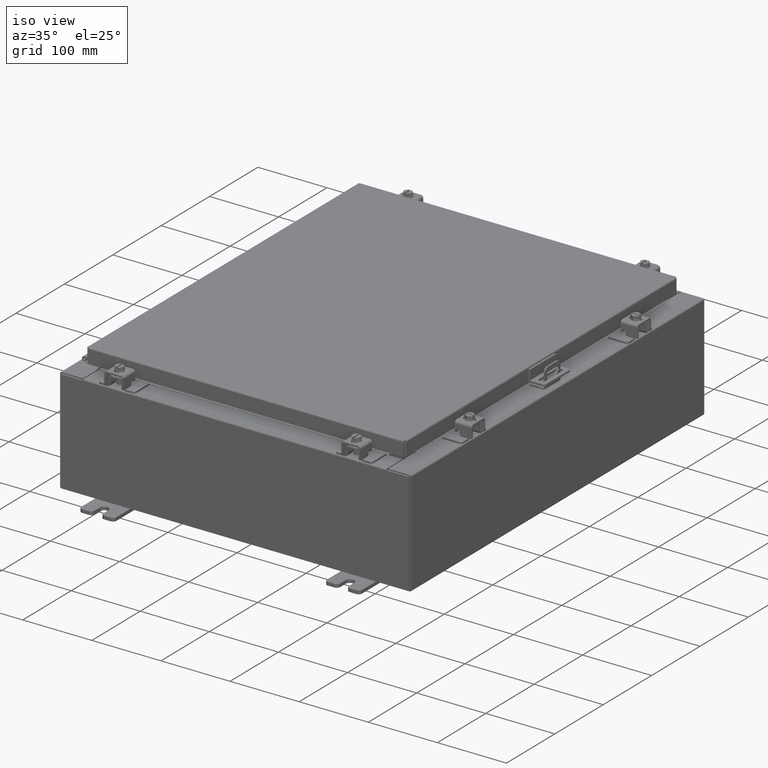
[diagram: clean part render]
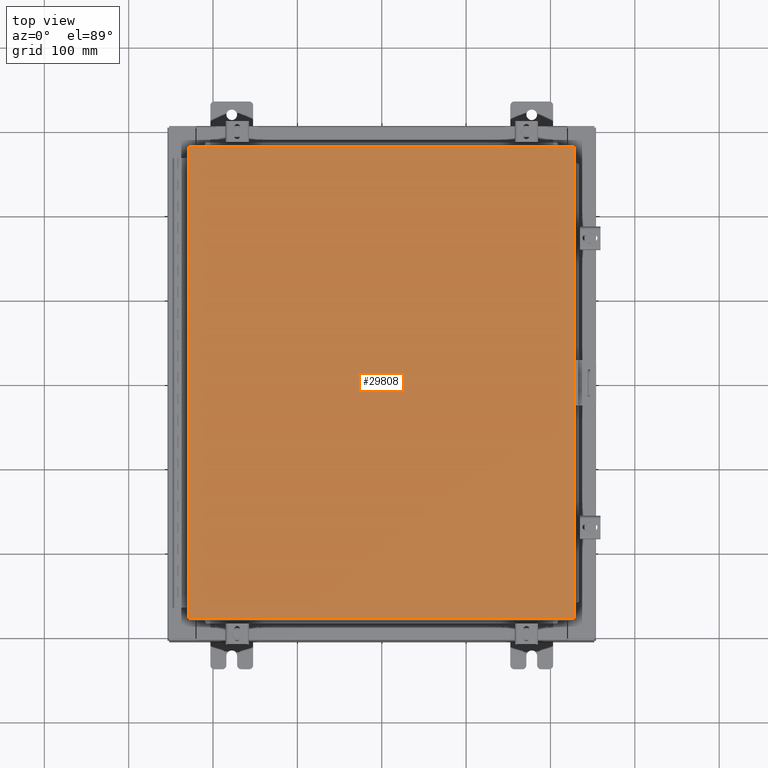
[diagram: tour spotlight — one face highlighted and labeled with its STEP entity id]
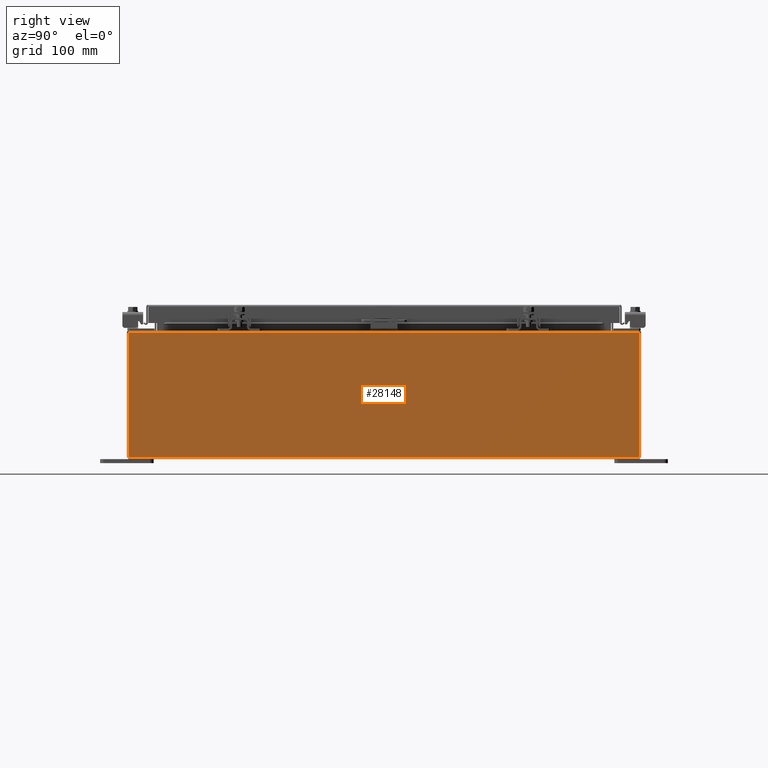
[diagram: tour spotlight — one face highlighted and labeled with its STEP entity id]
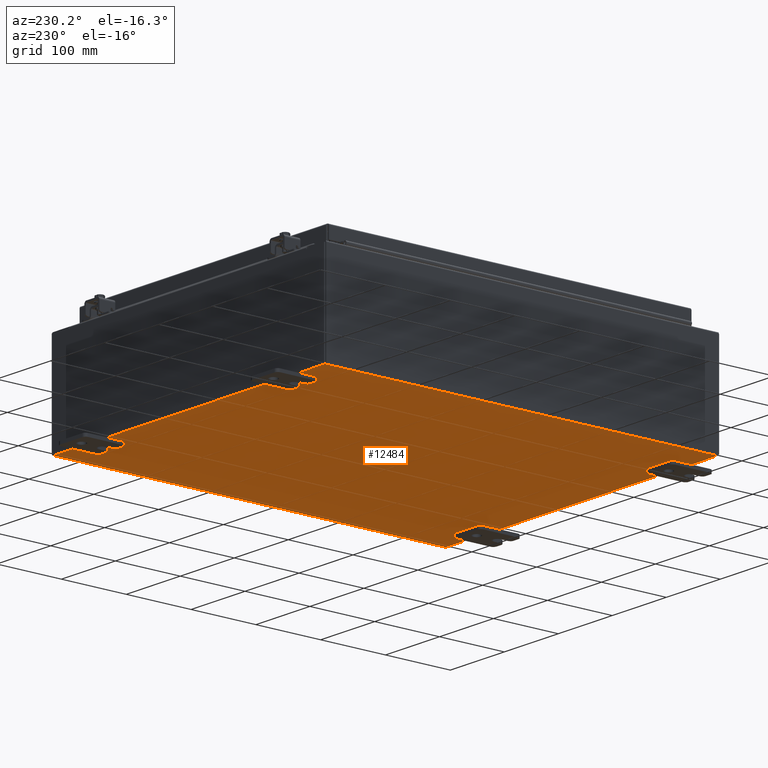
[diagram: tour spotlight — one face highlighted and labeled with its STEP entity id]
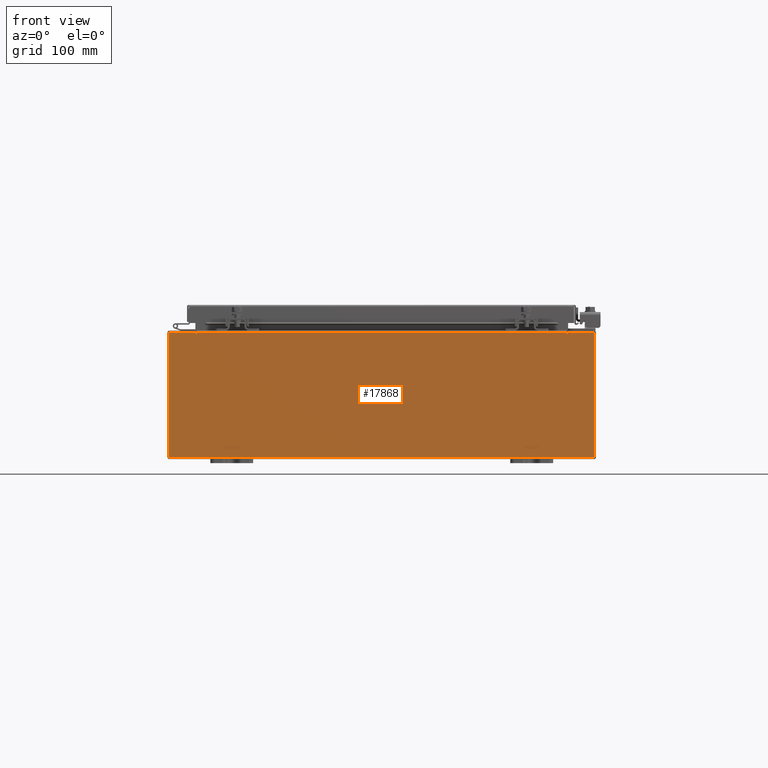
[diagram: tour spotlight — one face highlighted and labeled with its STEP entity id]
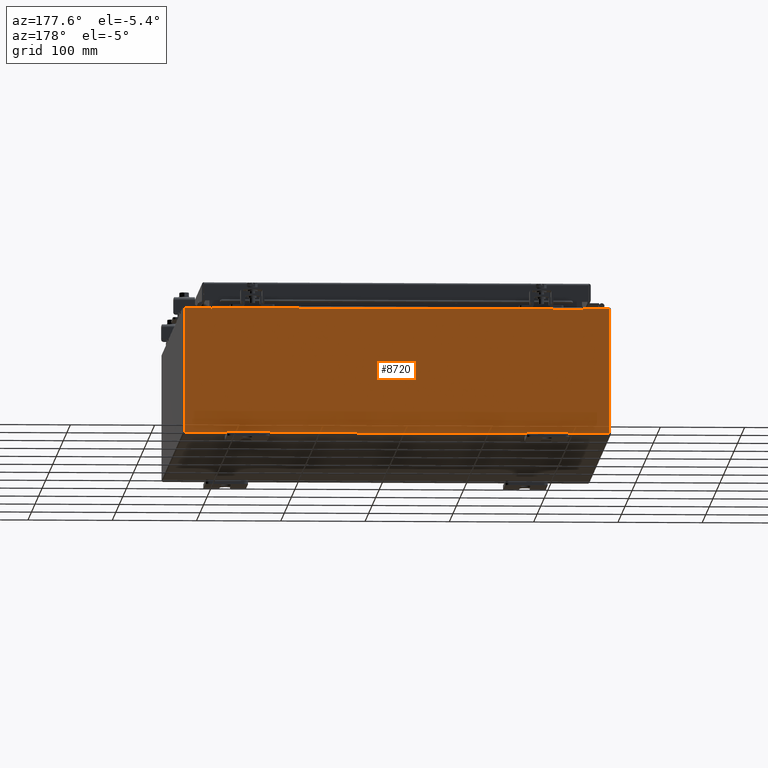
[diagram: tour spotlight — one face highlighted and labeled with its STEP entity id]
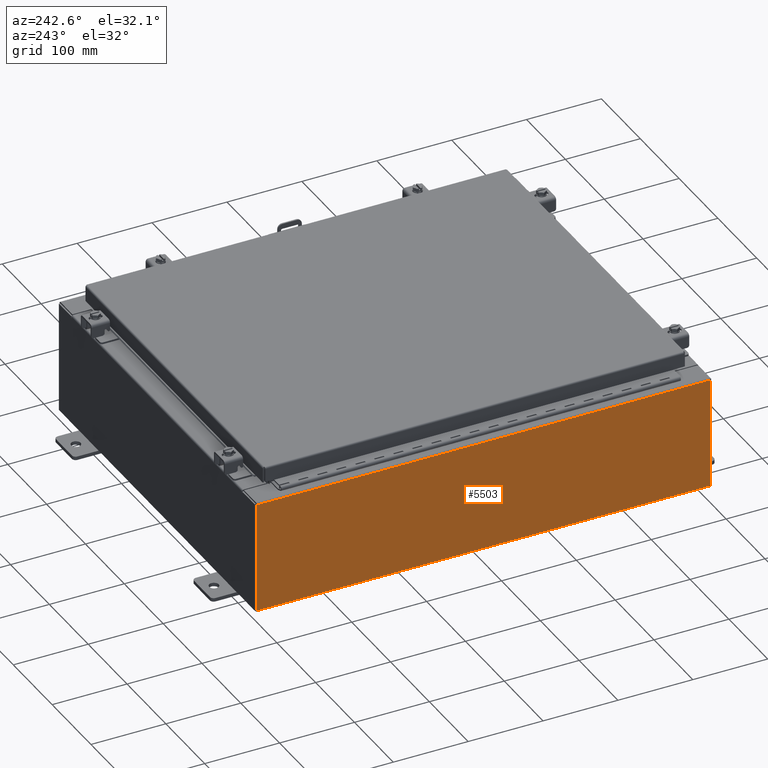
[diagram: tour spotlight — one face highlighted and labeled with its STEP entity id]
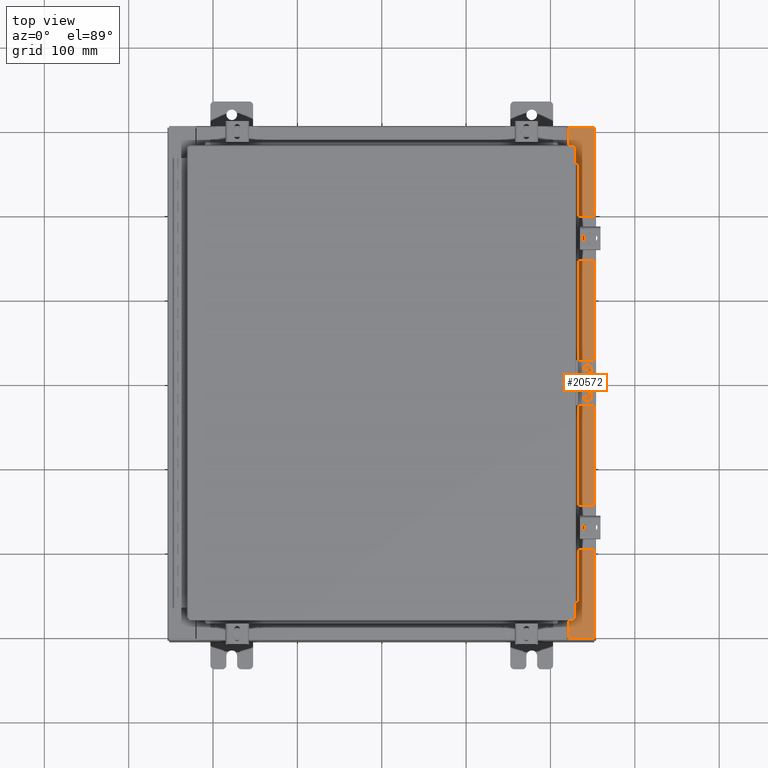
[diagram: tour spotlight — one face highlighted and labeled with its STEP entity id]
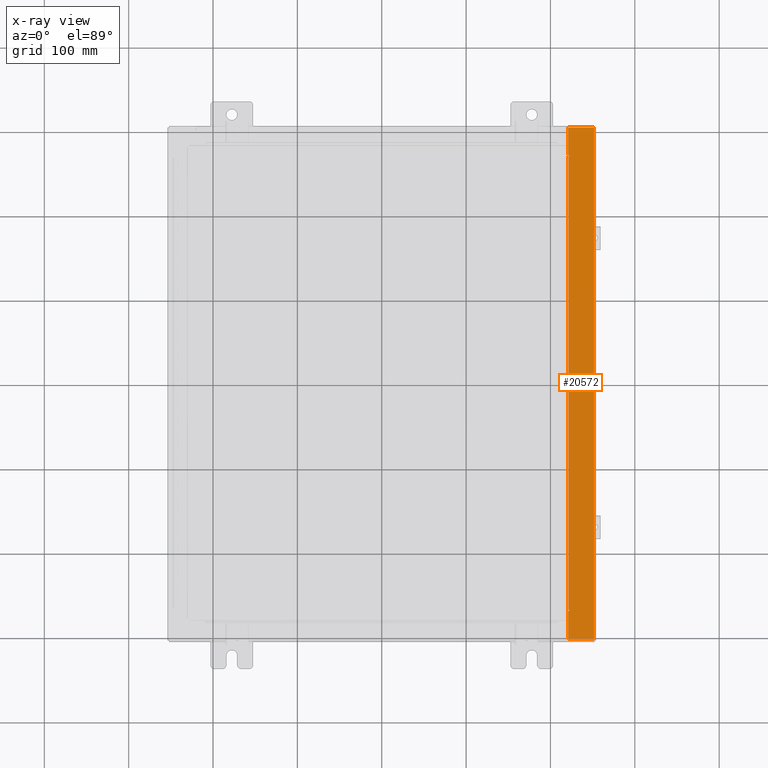
[diagram: x-ray of the same camera — body ghosted, this tour face saturated]
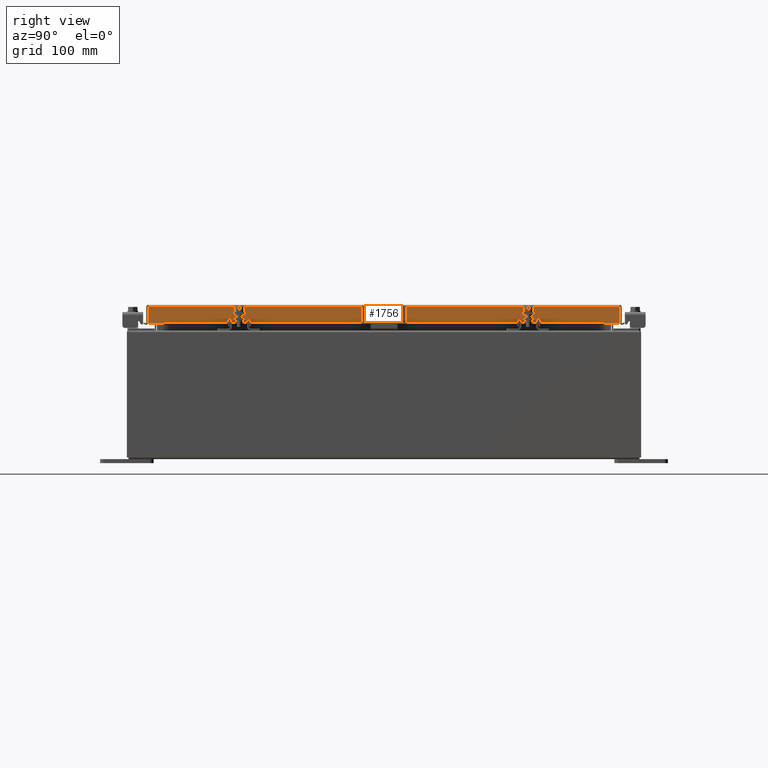
[diagram: tour spotlight — one face highlighted and labeled with its STEP entity id]
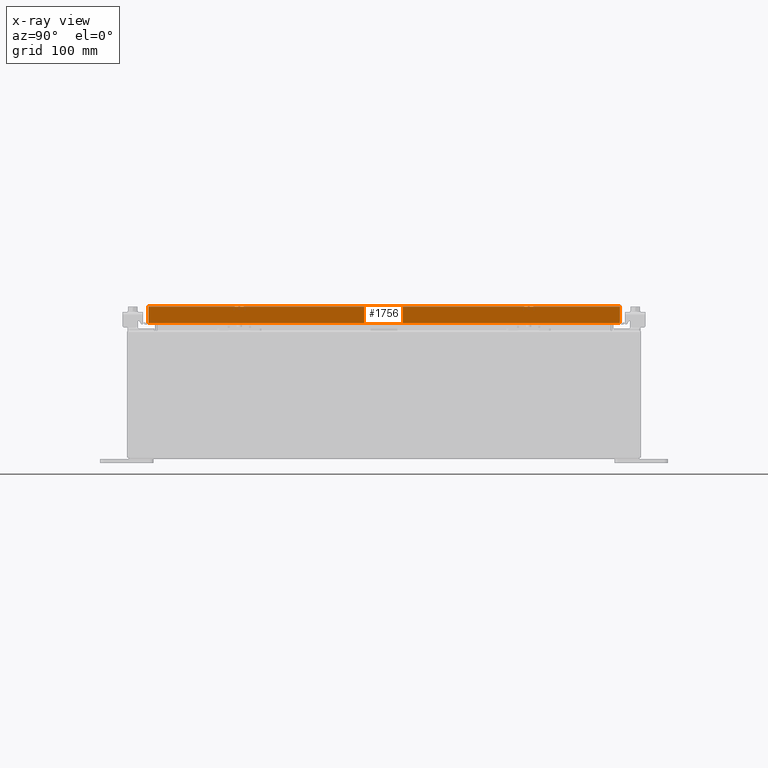
[diagram: x-ray of the same camera — body ghosted, this tour face saturated]
A machine part: a face-by-face anatomy tour. The part has 1709 B-rep faces; the first image is the clean iso view, then the 8 largest visible faces are spotlighted one at a time (largest first), each with its STEP entity span.

Face 1 — top view, entity #29808. In plain terms, the highlighted planar face has unit normal (0, 0, -1).
Definition (entity closure, byte-faithful):
#340 = CARTESIAN_POINT ( 'NONE',  ( 8.990299999999999500, 11.00630000000000000, -2.048885995248197400E-016 ) ) ;
#722 = CARTESIAN_POINT ( 'NONE',  ( 0.0000000000000000000, 0.0000000000000000000, 0.0000000000000000000 ) ) ;
#993 = EDGE_LOOP ( 'NONE', ( #31752, #9588, #30353, #30080 ) ) ;
#1302 = EDGE_CURVE ( 'NONE', #22427, #31088, #4163, .T. ) ;
#2485 = DIRECTION ( 'NONE',  ( 0.0000000000000000000, -1.000000000000000000, 0.0000000000000000000 ) ) ;
#3064 = CARTESIAN_POINT ( 'NONE',  ( 8.990299999999997700, -11.00630000000000000, -2.048885995248197400E-016 ) ) ;
#4163 = LINE ( 'NONE', #3064, #10060 ) ;
#6001 = LINE ( 'NONE', #340, #31782 ) ;
#6745 = VERTEX_POINT ( 'NONE', #26217 ) ;
#8630 = CARTESIAN_POINT ( 'NONE',  ( -8.990299999999999500, 11.00630000000000100, -2.048885995248197400E-016 ) ) ;
#9588 = ORIENTED_EDGE ( 'NONE', *, *, #1302, .T. ) ;
#10060 = VECTOR ( 'NONE', #11282, 39.37007874015748100 ) ;
#10882 = DIRECTION ( 'NONE',  ( 0.0000000000000000000, 0.0000000000000000000, -1.000000000000000000 ) ) ;
#11282 = DIRECTION ( 'NONE',  ( 0.0000000000000000000, 1.000000000000000000, 0.0000000000000000000 ) ) ;
#15616 = LINE ( 'NONE', #19941, #28908 ) ;
#16939 = EDGE_CURVE ( 'NONE', #24371, #6745, #15616, .T. ) ;
#17858 = DIRECTION ( 'NONE',  ( -1.000000000000000000, -0.0000000000000000000, -0.0000000000000000000 ) ) ;
#19941 = CARTESIAN_POINT ( 'NONE',  ( -8.990299999999999500, 11.00630000000000100, -2.048885995248197400E-016 ) ) ;
#21967 = AXIS2_PLACEMENT_3D ( 'NONE', #722, #10882, #28279 ) ;
#22427 = VERTEX_POINT ( 'NONE', #25956 ) ;
#24371 = VERTEX_POINT ( 'NONE', #8630 ) ;
#24434 = VECTOR ( 'NONE', #30696, 39.37007874015748100 ) ;
#25727 = CARTESIAN_POINT ( 'NONE',  ( -8.990300000000001300, -11.00630000000000100, 8.878505979408856000E-016 ) ) ;
#25772 = PLANE ( 'NONE',  #21967 ) ;
#25797 = CARTESIAN_POINT ( 'NONE',  ( 8.990299999999999500, 11.00630000000000000, -2.048885995248197400E-016 ) ) ;
#25956 = CARTESIAN_POINT ( 'NONE',  ( 8.990299999999997700, -11.00630000000000000, -2.048885995248197400E-016 ) ) ;
#26217 = CARTESIAN_POINT ( 'NONE',  ( -8.990300000000001300, -11.00630000000000100, 8.878505979408856000E-016 ) ) ;
#28279 = DIRECTION ( 'NONE',  ( -1.000000000000000000, 0.0000000000000000000, -0.0000000000000000000 ) ) ;
#28445 = EDGE_CURVE ( 'NONE', #31088, #24371, #6001, .T. ) ;
#28453 = FACE_OUTER_BOUND ( 'NONE', #993, .T. ) ;
#28908 = VECTOR ( 'NONE', #2485, 39.37007874015748100 ) ;
#29808 = ADVANCED_FACE ( 'NONE', ( #28453 ), #25772, .F. ) ;
#30080 = ORIENTED_EDGE ( 'NONE', *, *, #16939, .T. ) ;
#30353 = ORIENTED_EDGE ( 'NONE', *, *, #28445, .T. ) ;
#30696 = DIRECTION ( 'NONE',  ( 1.000000000000000000, -0.0000000000000000000, -0.0000000000000000000 ) ) ;
#31088 = VERTEX_POINT ( 'NONE', #25797 ) ;
#31752 = ORIENTED_EDGE ( 'NONE', *, *, #32159, .T. ) ;
#31782 = VECTOR ( 'NONE', #17858, 39.37007874015748100 ) ;
#31931 = LINE ( 'NONE', #25727, #24434 ) ;
#32159 = EDGE_CURVE ( 'NONE', #6745, #22427, #31931, .T. ) ;

Face 2 — right view, entity #28148. In plain terms, the highlighted planar face has unit normal (-1, 0, 0).
Definition (entity closure, byte-faithful):
#41 = LINE ( 'NONE', #4591, #31810 ) ;
#164 = EDGE_CURVE ( 'NONE', #10773, #7703, #41, .T. ) ;
#369 = EDGE_CURVE ( 'NONE', #7703, #13122, #6407, .T. ) ;
#967 = EDGE_LOOP ( 'NONE', ( #11157, #20116, #32401, #12408 ) ) ;
#3499 = CARTESIAN_POINT ( 'NONE',  ( 10.00000000000002000, 11.92529999999999800, 5.837600000000001000 ) ) ;
#4591 = CARTESIAN_POINT ( 'NONE',  ( 10.00000000000002000, 11.92530000000000000, 5.837600000000001000 ) ) ;
#4859 = EDGE_CURVE ( 'NONE', #19085, #10773, #12225, .T. ) ;
#5146 = AXIS2_PLACEMENT_3D ( 'NONE', #22424, #12682, #30149 ) ;
#5425 = VECTOR ( 'NONE', #25697, 39.37007874015748100 ) ;
#5572 = VECTOR ( 'NONE', #10959, 39.37007874015748100 ) ;
#6407 = LINE ( 'NONE', #19806, #18826 ) ;
#7703 = VERTEX_POINT ( 'NONE', #23976 ) ;
#9304 = CARTESIAN_POINT ( 'NONE',  ( 10.00000000000000000, 11.92529999999999800, 0.01299999999999986400 ) ) ;
#10172 = PLANE ( 'NONE',  #5146 ) ;
#10552 = CARTESIAN_POINT ( 'NONE',  ( 10.00000000000000000, -11.92530000000000000, 0.01299999999999985900 ) ) ;
#10773 = VERTEX_POINT ( 'NONE', #3499 ) ;
#10959 = DIRECTION ( 'NONE',  ( 3.319545939341922800E-015, 0.0000000000000000000, 1.000000000000000000 ) ) ;
#11157 = ORIENTED_EDGE ( 'NONE', *, *, #164, .T. ) ;
#12225 = LINE ( 'NONE', #20799, #5572 ) ;
#12408 = ORIENTED_EDGE ( 'NONE', *, *, #4859, .T. ) ;
#12682 = DIRECTION ( 'NONE',  ( -1.000000000000000000, 0.0000000000000000000, 3.319545939341922000E-015 ) ) ;
#13122 = VERTEX_POINT ( 'NONE', #10552 ) ;
#13632 = DIRECTION ( 'NONE',  ( -3.319545939341922800E-015, 0.0000000000000000000, -1.000000000000000000 ) ) ;
#18826 = VECTOR ( 'NONE', #13632, 39.37007874015748100 ) ;
#19085 = VERTEX_POINT ( 'NONE', #9304 ) ;
#19806 = CARTESIAN_POINT ( 'NONE',  ( 10.00000000000000000, -11.92530000000000000, -3.345627304943080600E-014 ) ) ;
#20116 = ORIENTED_EDGE ( 'NONE', *, *, #369, .T. ) ;
#20799 = CARTESIAN_POINT ( 'NONE',  ( 10.00000000000000000, 11.92530000000000000, -3.345627304943080600E-014 ) ) ;
#21165 = FACE_OUTER_BOUND ( 'NONE', #967, .T. ) ;
#21550 = DIRECTION ( 'NONE',  ( -0.0000000000000000000, -1.000000000000000000, -0.0000000000000000000 ) ) ;
#22424 = CARTESIAN_POINT ( 'NONE',  ( 10.00000000000000000, 0.0000000000000000000, -3.345627304943080600E-014 ) ) ;
#23157 = CARTESIAN_POINT ( 'NONE',  ( 10.00000000000000000, -11.92530000000000000, 0.01299999999999986400 ) ) ;
#23976 = CARTESIAN_POINT ( 'NONE',  ( 10.00000000000002000, -11.92530000000000000, 5.837600000000001000 ) ) ;
#25304 = LINE ( 'NONE', #23157, #5425 ) ;
#25697 = DIRECTION ( 'NONE',  ( -0.0000000000000000000, -1.000000000000000000, -0.0000000000000000000 ) ) ;
#28148 = ADVANCED_FACE ( 'NONE', ( #21165 ), #10172, .F. ) ;
#30149 = DIRECTION ( 'NONE',  ( 3.319545939341922000E-015, 0.0000000000000000000, 1.000000000000000000 ) ) ;
#31056 = EDGE_CURVE ( 'NONE', #19085, #13122, #25304, .T. ) ;
#31810 = VECTOR ( 'NONE', #21550, 39.37007874015748100 ) ;
#32401 = ORIENTED_EDGE ( 'NONE', *, *, #31056, .F. ) ;

Face 3 — auxiliary view, entity #12484. In plain terms, the highlighted planar face has unit normal (0, 0, -1).
Definition (entity closure, byte-faithful):
#246 = CARTESIAN_POINT ( 'NONE',  ( -10.00000000000000000, -11.92530000000000000, -0.07470000000000000300 ) ) ;
#2719 = DIRECTION ( 'NONE',  ( 1.000000000000000000, 0.0000000000000000000, 0.0000000000000000000 ) ) ;
#3911 = CARTESIAN_POINT ( 'NONE',  ( -9.912300000000000100, -11.92529999999999800, -0.07469999999999994700 ) ) ;
#4334 = LINE ( 'NONE', #19508, #30138 ) ;
#6215 = CARTESIAN_POINT ( 'NONE',  ( -9.912300000000000100, -11.92530000000000000, -0.07469999999999994700 ) ) ;
#7597 = CARTESIAN_POINT ( 'NONE',  ( 9.912300000000000100, 11.92530000000000000, -0.07469999999999994700 ) ) ;
#10557 = EDGE_CURVE ( 'NONE', #24012, #12305, #25810, .T. ) ;
#11024 = EDGE_CURVE ( 'NONE', #24012, #25188, #4334, .T. ) ;
#11702 = VECTOR ( 'NONE', #16200, 39.37007874015748100 ) ;
#12157 = DIRECTION ( 'NONE',  ( -1.000000000000000000, -0.0000000000000000000, -0.0000000000000000000 ) ) ;
#12305 = VERTEX_POINT ( 'NONE', #20115 ) ;
#12360 = CARTESIAN_POINT ( 'NONE',  ( 9.912300000000000100, 11.92529999999999800, -0.07469999999999994700 ) ) ;
#12484 = ADVANCED_FACE ( 'NONE', ( #28049 ), #15760, .T. ) ;
#12567 = EDGE_CURVE ( 'NONE', #13944, #25188, #19817, .T. ) ;
#13279 = ORIENTED_EDGE ( 'NONE', *, *, #11024, .F. ) ;
#13300 = CARTESIAN_POINT ( 'NONE',  ( 0.0000000000000000000, 0.0000000000000000000, -0.07470000000000000300 ) ) ;
#13652 = EDGE_CURVE ( 'NONE', #13944, #12305, #15104, .T. ) ;
#13944 = VERTEX_POINT ( 'NONE', #3911 ) ;
#15104 = LINE ( 'NONE', #246, #21697 ) ;
#15760 = PLANE ( 'NONE',  #25551 ) ;
#15878 = DIRECTION ( 'NONE',  ( -1.000000000000000000, 0.0000000000000000000, -0.0000000000000000000 ) ) ;
#16200 = DIRECTION ( 'NONE',  ( -0.0000000000000000000, 1.000000000000000000, -0.0000000000000000000 ) ) ;
#18359 = VECTOR ( 'NONE', #24993, 39.37007874015748100 ) ;
#19508 = CARTESIAN_POINT ( 'NONE',  ( -10.00000000000000000, 11.92530000000000000, -0.07470000000000000300 ) ) ;
#19817 = LINE ( 'NONE', #6215, #11702 ) ;
#20115 = CARTESIAN_POINT ( 'NONE',  ( 9.912300000000000100, -11.92530000000000000, -0.07470000000000000300 ) ) ;
#20327 = ORIENTED_EDGE ( 'NONE', *, *, #10557, .T. ) ;
#20959 = ORIENTED_EDGE ( 'NONE', *, *, #12567, .T. ) ;
#21697 = VECTOR ( 'NONE', #2719, 39.37007874015748100 ) ;
#24012 = VERTEX_POINT ( 'NONE', #12360 ) ;
#24118 = CARTESIAN_POINT ( 'NONE',  ( -9.912300000000000100, 11.92530000000000000, -0.07470000000000000300 ) ) ;
#24993 = DIRECTION ( 'NONE',  ( -0.0000000000000000000, -1.000000000000000000, -0.0000000000000000000 ) ) ;
#25188 = VERTEX_POINT ( 'NONE', #24118 ) ;
#25551 = AXIS2_PLACEMENT_3D ( 'NONE', #13300, #30869, #15878 ) ;
#25810 = LINE ( 'NONE', #7597, #18359 ) ;
#27933 = EDGE_LOOP ( 'NONE', ( #30140, #20959, #13279, #20327 ) ) ;
#28049 = FACE_OUTER_BOUND ( 'NONE', #27933, .T. ) ;
#30138 = VECTOR ( 'NONE', #12157, 39.37007874015748100 ) ;
#30140 = ORIENTED_EDGE ( 'NONE', *, *, #13652, .F. ) ;
#30869 = DIRECTION ( 'NONE',  ( 0.0000000000000000000, 0.0000000000000000000, -1.000000000000000000 ) ) ;

Face 4 — front view, entity #17868. In plain terms, the highlighted planar face has unit normal (-0, 1, -0).
Definition (entity closure, byte-faithful):
#53 = CARTESIAN_POINT ( 'NONE',  ( 9.925300000000000000, 0.0000000000000000000, 2.925300000000000500 ) ) ;
#137 = DIRECTION ( 'NONE',  ( 1.000000000000000000, 0.0000000000000000000, 0.0000000000000000000 ) ) ;
#511 = VECTOR ( 'NONE', #26321, 39.37007874015748100 ) ;
#708 = VECTOR ( 'NONE', #15236, 39.37007874015748100 ) ;
#1703 = VERTEX_POINT ( 'NONE', #7808 ) ;
#1921 = DIRECTION ( 'NONE',  ( -0.0000000000000000000, 1.000000000000000000, -0.0000000000000000000 ) ) ;
#1993 = ORIENTED_EDGE ( 'NONE', *, *, #28302, .F. ) ;
#2179 = VECTOR ( 'NONE', #137, 39.37007874015748100 ) ;
#2208 = VECTOR ( 'NONE', #28074, 39.37007874015748100 ) ;
#2262 = DIRECTION ( 'NONE',  ( -0.0000000000000000000, 1.000000000000000000, -0.0000000000000000000 ) ) ;
#2627 = CARTESIAN_POINT ( 'NONE',  ( -9.925300000000000000, 0.0000000000000000000, -2.925299999999999600 ) ) ;
#3241 = CIRCLE ( 'NONE', #26881, 0.01867500000000003900 ) ;
#3471 = LINE ( 'NONE', #13170, #21779 ) ;
#3705 = VERTEX_POINT ( 'NONE', #16646 ) ;
#4499 = ORIENTED_EDGE ( 'NONE', *, *, #24944, .F. ) ;
#4774 = CARTESIAN_POINT ( 'NONE',  ( -8.674549999999996400, 0.0000000000000000000, 2.925300000000000500 ) ) ;
#5336 = ORIENTED_EDGE ( 'NONE', *, *, #25396, .T. ) ;
#5368 = EDGE_CURVE ( 'NONE', #25713, #9865, #7134, .T. ) ;
#5595 = ORIENTED_EDGE ( 'NONE', *, *, #23881, .F. ) ;
#5917 = CARTESIAN_POINT ( 'NONE',  ( 9.925300000000000000, 0.0000000000000000000, -2.925299999999999600 ) ) ;
#6320 = DIRECTION ( 'NONE',  ( 0.0000000000000000000, -1.000000000000000000, 0.0000000000000000000 ) ) ;
#6601 = VERTEX_POINT ( 'NONE', #30768 ) ;
#6981 = CARTESIAN_POINT ( 'NONE',  ( -9.925300000000000000, 0.0000000000000000000, 2.925300000000000500 ) ) ;
#7134 = LINE ( 'NONE', #6981, #26986 ) ;
#7267 = ORIENTED_EDGE ( 'NONE', *, *, #27220, .F. ) ;
#7320 = VERTEX_POINT ( 'NONE', #2627 ) ;
#7613 = DIRECTION ( 'NONE',  ( 0.0000000000000000000, 0.0000000000000000000, -1.000000000000000000 ) ) ;
#7808 = CARTESIAN_POINT ( 'NONE',  ( 8.637200000000000000, 0.0000000000000000000, 2.912300000000000600 ) ) ;
#8271 = DIRECTION ( 'NONE',  ( 0.0000000000000000000, 0.0000000000000000000, 1.000000000000000000 ) ) ;
#8623 = DIRECTION ( 'NONE',  ( -0.0000000000000000000, -0.0000000000000000000, 1.000000000000000000 ) ) ;
#8814 = ORIENTED_EDGE ( 'NONE', *, *, #29776, .F. ) ;
#9476 = DIRECTION ( 'NONE',  ( 1.000000000000000000, 0.0000000000000000000, 0.0000000000000000000 ) ) ;
#9543 = ORIENTED_EDGE ( 'NONE', *, *, #22156, .F. ) ;
#9763 = CIRCLE ( 'NONE', #29095, 0.01867500000000003900 ) ;
#9865 = VERTEX_POINT ( 'NONE', #4774 ) ;
#10308 = VECTOR ( 'NONE', #8623, 39.37007874015748100 ) ;
#12601 = LINE ( 'NONE', #32456, #16854 ) ;
#12618 = VERTEX_POINT ( 'NONE', #16414 ) ;
#12713 = CARTESIAN_POINT ( 'NONE',  ( -9.925300000000000000, 0.0000000000000000000, 2.925300000000000500 ) ) ;
#12911 = ORIENTED_EDGE ( 'NONE', *, *, #21136, .T. ) ;
#13008 = EDGE_CURVE ( 'NONE', #31629, #30481, #24874, .T. ) ;
#13170 = CARTESIAN_POINT ( 'NONE',  ( -8.674549999999996400, -0.0000000000000000000, 0.0000000000000000000 ) ) ;
#13672 = DIRECTION ( 'NONE',  ( 1.000000000000000000, 0.0000000000000000000, 0.0000000000000000000 ) ) ;
#13708 = ORIENTED_EDGE ( 'NONE', *, *, #29086, .T. ) ;
#13879 = LINE ( 'NONE', #28863, #511 ) ;
#13906 = LINE ( 'NONE', #26177, #26359 ) ;
#15236 = DIRECTION ( 'NONE',  ( -1.000000000000000000, -0.0000000000000000000, -0.0000000000000000000 ) ) ;
#16414 = CARTESIAN_POINT ( 'NONE',  ( -8.637199999999996400, -0.0000000000000000000, 2.874950000000000600 ) ) ;
#16646 = CARTESIAN_POINT ( 'NONE',  ( 8.637200000000000000, 0.0000000000000000000, 2.874950000000000600 ) ) ;
#16854 = VECTOR ( 'NONE', #24988, 39.37007874015748100 ) ;
#16910 = CARTESIAN_POINT ( 'NONE',  ( 8.655875000000000000, 0.0000000000000000000, 2.874950000000000600 ) ) ;
#16919 = LINE ( 'NONE', #18463, #10308 ) ;
#17140 = CARTESIAN_POINT ( 'NONE',  ( -9.925300000000000000, 0.0000000000000000000, 2.925300000000000500 ) ) ;
#17218 = CARTESIAN_POINT ( 'NONE',  ( -8.655874999999996400, 0.0000000000000000000, 2.874950000000000600 ) ) ;
#17868 = ADVANCED_FACE ( 'NONE', ( #29660 ), #31206, .F. ) ;
#18226 = CARTESIAN_POINT ( 'NONE',  ( 8.637200000000000000, 0.0000000000000000000, 0.0000000000000000000 ) ) ;
#18463 = CARTESIAN_POINT ( 'NONE',  ( -9.925300000000000000, 0.0000000000000000000, 2.925300000000000500 ) ) ;
#18879 = CARTESIAN_POINT ( 'NONE',  ( -8.637199999999996400, 1.024442997624098700E-016, 2.912300000000000600 ) ) ;
#19390 = DIRECTION ( 'NONE',  ( 0.0000000000000000000, 0.0000000000000000000, -1.000000000000000000 ) ) ;
#19426 = EDGE_LOOP ( 'NONE', ( #8814, #1993, #7267, #22895, #4499, #5595, #9543, #5336, #31567, #13708, #12911, #24587 ) ) ;
#19714 = DIRECTION ( 'NONE',  ( 0.0000000000000000000, 0.0000000000000000000, -1.000000000000000000 ) ) ;
#20074 = VERTEX_POINT ( 'NONE', #18879 ) ;
#20098 = CARTESIAN_POINT ( 'NONE',  ( 8.674550000000001800, 0.0000000000000000000, 2.925300000000000500 ) ) ;
#20655 = LINE ( 'NONE', #27669, #708 ) ;
#21136 = EDGE_CURVE ( 'NONE', #7320, #25713, #16919, .T. ) ;
#21673 = VERTEX_POINT ( 'NONE', #30653 ) ;
#21779 = VECTOR ( 'NONE', #8271, 39.37007874015748100 ) ;
#22156 = EDGE_CURVE ( 'NONE', #26886, #6601, #12601, .T. ) ;
#22895 = ORIENTED_EDGE ( 'NONE', *, *, #25949, .T. ) ;
#22911 = CARTESIAN_POINT ( 'NONE',  ( 9.925300000000000000, 0.0000000000000000000, 2.925300000000000500 ) ) ;
#23718 = DIRECTION ( 'NONE',  ( 0.0000000000000000000, -0.0000000000000000000, -1.000000000000000000 ) ) ;
#23881 = EDGE_CURVE ( 'NONE', #6601, #3705, #9763, .T. ) ;
#24587 = ORIENTED_EDGE ( 'NONE', *, *, #5368, .T. ) ;
#24874 = LINE ( 'NONE', #53, #30798 ) ;
#24944 = EDGE_CURVE ( 'NONE', #3705, #1703, #28003, .T. ) ;
#24988 = DIRECTION ( 'NONE',  ( -6.510859170600007400E-014, 0.0000000000000000000, -1.000000000000000000 ) ) ;
#25396 = EDGE_CURVE ( 'NONE', #26886, #31629, #28766, .T. ) ;
#25713 = VERTEX_POINT ( 'NONE', #17140 ) ;
#25949 = EDGE_CURVE ( 'NONE', #20074, #1703, #13906, .T. ) ;
#26177 = CARTESIAN_POINT ( 'NONE',  ( -8.637200000000000000, 1.024442997624098700E-016, 2.912300000000000600 ) ) ;
#26321 = DIRECTION ( 'NONE',  ( 0.0000000000000000000, 0.0000000000000000000, -1.000000000000000000 ) ) ;
#26359 = VECTOR ( 'NONE', #13672, 39.37007874015748100 ) ;
#26881 = AXIS2_PLACEMENT_3D ( 'NONE', #17218, #2262, #19714 ) ;
#26886 = VERTEX_POINT ( 'NONE', #20098 ) ;
#26986 = VECTOR ( 'NONE', #9476, 39.37007874015748100 ) ;
#27220 = EDGE_CURVE ( 'NONE', #20074, #12618, #13879, .T. ) ;
#27669 = CARTESIAN_POINT ( 'NONE',  ( -9.925300000000000000, 0.0000000000000000000, -2.925299999999999600 ) ) ;
#28003 = LINE ( 'NONE', #18226, #2208 ) ;
#28074 = DIRECTION ( 'NONE',  ( 0.0000000000000000000, 0.0000000000000000000, 1.000000000000000000 ) ) ;
#28302 = EDGE_CURVE ( 'NONE', #12618, #21673, #3241, .T. ) ;
#28646 = CARTESIAN_POINT ( 'NONE',  ( 0.0000000000000000000, 0.0000000000000000000, 0.0000000000000000000 ) ) ;
#28766 = LINE ( 'NONE', #12713, #2179 ) ;
#28863 = CARTESIAN_POINT ( 'NONE',  ( -8.637199999999996400, -0.0000000000000000000, 0.0000000000000000000 ) ) ;
#29086 = EDGE_CURVE ( 'NONE', #30481, #7320, #20655, .T. ) ;
#29095 = AXIS2_PLACEMENT_3D ( 'NONE', #16910, #1921, #19390 ) ;
#29592 = AXIS2_PLACEMENT_3D ( 'NONE', #28646, #6320, #23718 ) ;
#29660 = FACE_OUTER_BOUND ( 'NONE', #19426, .T. ) ;
#29776 = EDGE_CURVE ( 'NONE', #21673, #9865, #3471, .T. ) ;
#30481 = VERTEX_POINT ( 'NONE', #5917 ) ;
#30653 = CARTESIAN_POINT ( 'NONE',  ( -8.674549999999996400, 0.0000000000000000000, 2.874950000000000600 ) ) ;
#30768 = CARTESIAN_POINT ( 'NONE',  ( 8.674550000000000000, 0.0000000000000000000, 2.874950000000000600 ) ) ;
#30798 = VECTOR ( 'NONE', #7613, 39.37007874015748100 ) ;
#31206 = PLANE ( 'NONE',  #29592 ) ;
#31567 = ORIENTED_EDGE ( 'NONE', *, *, #13008, .T. ) ;
#31629 = VERTEX_POINT ( 'NONE', #22911 ) ;
#32456 = CARTESIAN_POINT ( 'NONE',  ( 8.674549999999813500, -0.0000000000000000000, -5.647877341832707700E-013 ) ) ;

Face 5 — auxiliary view, entity #8720. In plain terms, the highlighted planar face has unit normal (0, -1, 0).
Definition (entity closure, byte-faithful):
#204 = VECTOR ( 'NONE', #27729, 39.37007874015748100 ) ;
#515 = DIRECTION ( 'NONE',  ( 0.0000000000000000000, 0.0000000000000000000, 1.000000000000000000 ) ) ;
#672 = VECTOR ( 'NONE', #19379, 39.37007874015748100 ) ;
#1281 = FACE_OUTER_BOUND ( 'NONE', #11516, .T. ) ;
#1371 = ORIENTED_EDGE ( 'NONE', *, *, #12869, .T. ) ;
#1742 = CARTESIAN_POINT ( 'NONE',  ( 8.637200000000000000, 0.0000000000000000000, 2.912300000000000600 ) ) ;
#2065 = DIRECTION ( 'NONE',  ( 0.0000000000000000000, 0.0000000000000000000, -1.000000000000000000 ) ) ;
#2148 = VERTEX_POINT ( 'NONE', #13980 ) ;
#2315 = DIRECTION ( 'NONE',  ( -0.0000000000000000000, 1.000000000000000000, -0.0000000000000000000 ) ) ;
#2737 = CARTESIAN_POINT ( 'NONE',  ( 8.674549999999813500, -0.0000000000000000000, -5.647877341832707700E-013 ) ) ;
#3550 = CARTESIAN_POINT ( 'NONE',  ( -9.925300000000000000, 0.0000000000000000000, -2.925299999999999600 ) ) ;
#4086 = EDGE_CURVE ( 'NONE', #22575, #5256, #6011, .T. ) ;
#4183 = CARTESIAN_POINT ( 'NONE',  ( -9.925300000000000000, 0.0000000000000000000, 2.925300000000000500 ) ) ;
#4517 = CARTESIAN_POINT ( 'NONE',  ( 9.925300000000000000, 0.0000000000000000000, 2.925300000000000500 ) ) ;
#5110 = CARTESIAN_POINT ( 'NONE',  ( 8.637200000000000000, 0.0000000000000000000, 2.874950000000000600 ) ) ;
#5171 = EDGE_CURVE ( 'NONE', #5256, #22194, #5955, .T. ) ;
#5256 = VERTEX_POINT ( 'NONE', #28988 ) ;
#5725 = CARTESIAN_POINT ( 'NONE',  ( -8.637199999999996400, -0.0000000000000000000, 0.0000000000000000000 ) ) ;
#5955 = LINE ( 'NONE', #3550, #24235 ) ;
#6011 = LINE ( 'NONE', #4517, #31801 ) ;
#6196 = LINE ( 'NONE', #15004, #31968 ) ;
#6494 = CARTESIAN_POINT ( 'NONE',  ( -9.925300000000000000, 0.0000000000000000000, 2.925300000000000500 ) ) ;
#6734 = CARTESIAN_POINT ( 'NONE',  ( -8.637199999999996400, 1.024442997624098700E-016, 2.912300000000000600 ) ) ;
#6736 = DIRECTION ( 'NONE',  ( 1.000000000000000000, 0.0000000000000000000, 0.0000000000000000000 ) ) ;
#7486 = EDGE_CURVE ( 'NONE', #25183, #8523, #30444, .T. ) ;
#8523 = VERTEX_POINT ( 'NONE', #21243 ) ;
#8550 = EDGE_CURVE ( 'NONE', #22194, #20194, #11944, .T. ) ;
#8720 = ADVANCED_FACE ( 'NONE', ( #1281 ), #24627, .F. ) ;
#9406 = CARTESIAN_POINT ( 'NONE',  ( -8.637200000000000000, 1.024442997624098700E-016, 2.912300000000000600 ) ) ;
#9529 = AXIS2_PLACEMENT_3D ( 'NONE', #17270, #2315, #19777 ) ;
#9583 = CARTESIAN_POINT ( 'NONE',  ( -9.925300000000000000, 0.0000000000000000000, 2.925300000000000500 ) ) ;
#10203 = CARTESIAN_POINT ( 'NONE',  ( -9.925300000000000000, 0.0000000000000000000, -2.925299999999999600 ) ) ;
#10367 = VERTEX_POINT ( 'NONE', #1742 ) ;
#11129 = DIRECTION ( 'NONE',  ( -1.000000000000000000, -0.0000000000000000000, -0.0000000000000000000 ) ) ;
#11359 = ORIENTED_EDGE ( 'NONE', *, *, #24748, .F. ) ;
#11516 = EDGE_LOOP ( 'NONE', ( #12362, #24715, #13789, #17325, #11359, #22236, #21432, #25884, #20872, #31648, #18177, #1371 ) ) ;
#11944 = LINE ( 'NONE', #6494, #31064 ) ;
#12106 = DIRECTION ( 'NONE',  ( 1.000000000000000000, 0.0000000000000000000, 0.0000000000000000000 ) ) ;
#12268 = CARTESIAN_POINT ( 'NONE',  ( 0.0000000000000000000, 0.0000000000000000000, 0.0000000000000000000 ) ) ;
#12362 = ORIENTED_EDGE ( 'NONE', *, *, #23087, .F. ) ;
#12501 = VERTEX_POINT ( 'NONE', #20858 ) ;
#12869 = EDGE_CURVE ( 'NONE', #20194, #31335, #29635, .T. ) ;
#13152 = DIRECTION ( 'NONE',  ( 0.0000000000000000000, 0.0000000000000000000, -1.000000000000000000 ) ) ;
#13789 = ORIENTED_EDGE ( 'NONE', *, *, #7486, .F. ) ;
#13980 = CARTESIAN_POINT ( 'NONE',  ( 8.674550000000000000, 0.0000000000000000000, 2.874950000000000600 ) ) ;
#14046 = LINE ( 'NONE', #9406, #672 ) ;
#14158 = EDGE_CURVE ( 'NONE', #8523, #19042, #15837, .T. ) ;
#14354 = LINE ( 'NONE', #2737, #204 ) ;
#14471 = DIRECTION ( 'NONE',  ( -0.0000000000000000000, 1.000000000000000000, -0.0000000000000000000 ) ) ;
#14749 = DIRECTION ( 'NONE',  ( 0.0000000000000000000, -0.0000000000000000000, -1.000000000000000000 ) ) ;
#15004 = CARTESIAN_POINT ( 'NONE',  ( 8.637200000000000000, 0.0000000000000000000, 0.0000000000000000000 ) ) ;
#15837 = CIRCLE ( 'NONE', #9529, 0.01867500000000003900 ) ;
#16123 = CARTESIAN_POINT ( 'NONE',  ( -8.674549999999996400, 0.0000000000000000000, 2.874950000000000600 ) ) ;
#17270 = CARTESIAN_POINT ( 'NONE',  ( -8.655874999999996400, 0.0000000000000000000, 2.874950000000000600 ) ) ;
#17325 = ORIENTED_EDGE ( 'NONE', *, *, #17459, .T. ) ;
#17459 = EDGE_CURVE ( 'NONE', #25183, #10367, #14046, .T. ) ;
#18177 = ORIENTED_EDGE ( 'NONE', *, *, #8550, .T. ) ;
#19042 = VERTEX_POINT ( 'NONE', #16123 ) ;
#19168 = CARTESIAN_POINT ( 'NONE',  ( 9.925300000000000000, 0.0000000000000000000, 2.925300000000000500 ) ) ;
#19379 = DIRECTION ( 'NONE',  ( 1.000000000000000000, 0.0000000000000000000, 0.0000000000000000000 ) ) ;
#19777 = DIRECTION ( 'NONE',  ( 0.0000000000000000000, 0.0000000000000000000, -1.000000000000000000 ) ) ;
#20094 = EDGE_CURVE ( 'NONE', #12501, #22575, #29909, .T. ) ;
#20194 = VERTEX_POINT ( 'NONE', #26969 ) ;
#20858 = CARTESIAN_POINT ( 'NONE',  ( 8.674550000000001800, 0.0000000000000000000, 2.925300000000000500 ) ) ;
#20872 = ORIENTED_EDGE ( 'NONE', *, *, #4086, .T. ) ;
#21243 = CARTESIAN_POINT ( 'NONE',  ( -8.637199999999996400, -0.0000000000000000000, 2.874950000000000600 ) ) ;
#21393 = EDGE_CURVE ( 'NONE', #2148, #29076, #31382, .T. ) ;
#21432 = ORIENTED_EDGE ( 'NONE', *, *, #31515, .F. ) ;
#22134 = VECTOR ( 'NONE', #12106, 39.37007874015748100 ) ;
#22194 = VERTEX_POINT ( 'NONE', #10203 ) ;
#22236 = ORIENTED_EDGE ( 'NONE', *, *, #21393, .F. ) ;
#22575 = VERTEX_POINT ( 'NONE', #19168 ) ;
#23087 = EDGE_CURVE ( 'NONE', #19042, #31335, #24979, .T. ) ;
#24235 = VECTOR ( 'NONE', #11129, 39.37007874015748100 ) ;
#24627 = PLANE ( 'NONE',  #28808 ) ;
#24715 = ORIENTED_EDGE ( 'NONE', *, *, #14158, .F. ) ;
#24748 = EDGE_CURVE ( 'NONE', #29076, #10367, #6196, .T. ) ;
#24979 = LINE ( 'NONE', #30641, #30888 ) ;
#25183 = VERTEX_POINT ( 'NONE', #6734 ) ;
#25884 = ORIENTED_EDGE ( 'NONE', *, *, #20094, .T. ) ;
#26969 = CARTESIAN_POINT ( 'NONE',  ( -9.925300000000000000, 0.0000000000000000000, 2.925300000000000500 ) ) ;
#27729 = DIRECTION ( 'NONE',  ( -6.510859170600007400E-014, 0.0000000000000000000, -1.000000000000000000 ) ) ;
#27983 = AXIS2_PLACEMENT_3D ( 'NONE', #29431, #14471, #31969 ) ;
#28296 = VECTOR ( 'NONE', #6736, 39.37007874015748100 ) ;
#28808 = AXIS2_PLACEMENT_3D ( 'NONE', #12268, #29722, #14749 ) ;
#28828 = VECTOR ( 'NONE', #13152, 39.37007874015748100 ) ;
#28988 = CARTESIAN_POINT ( 'NONE',  ( 9.925300000000000000, 0.0000000000000000000, -2.925299999999999600 ) ) ;
#29076 = VERTEX_POINT ( 'NONE', #5110 ) ;
#29431 = CARTESIAN_POINT ( 'NONE',  ( 8.655875000000000000, 0.0000000000000000000, 2.874950000000000600 ) ) ;
#29635 = LINE ( 'NONE', #9583, #22134 ) ;
#29722 = DIRECTION ( 'NONE',  ( 0.0000000000000000000, -1.000000000000000000, 0.0000000000000000000 ) ) ;
#29909 = LINE ( 'NONE', #4183, #28296 ) ;
#30000 = DIRECTION ( 'NONE',  ( 0.0000000000000000000, 0.0000000000000000000, 1.000000000000000000 ) ) ;
#30444 = LINE ( 'NONE', #5725, #28828 ) ;
#30641 = CARTESIAN_POINT ( 'NONE',  ( -8.674549999999996400, -0.0000000000000000000, 0.0000000000000000000 ) ) ;
#30888 = VECTOR ( 'NONE', #515, 39.37007874015748100 ) ;
#31064 = VECTOR ( 'NONE', #31479, 39.37007874015748100 ) ;
#31335 = VERTEX_POINT ( 'NONE', #31947 ) ;
#31382 = CIRCLE ( 'NONE', #27983, 0.01867500000000003900 ) ;
#31479 = DIRECTION ( 'NONE',  ( -0.0000000000000000000, -0.0000000000000000000, 1.000000000000000000 ) ) ;
#31515 = EDGE_CURVE ( 'NONE', #12501, #2148, #14354, .T. ) ;
#31648 = ORIENTED_EDGE ( 'NONE', *, *, #5171, .T. ) ;
#31801 = VECTOR ( 'NONE', #2065, 39.37007874015748100 ) ;
#31947 = CARTESIAN_POINT ( 'NONE',  ( -8.674549999999996400, 0.0000000000000000000, 2.925300000000000500 ) ) ;
#31968 = VECTOR ( 'NONE', #30000, 39.37007874015748100 ) ;
#31969 = DIRECTION ( 'NONE',  ( 0.0000000000000000000, 0.0000000000000000000, -1.000000000000000000 ) ) ;

Face 6 — auxiliary view, entity #5503. In plain terms, the highlighted planar face has unit normal (1, 0, 0).
Definition (entity closure, byte-faithful):
#139 = ORIENTED_EDGE ( 'NONE', *, *, #23197, .T. ) ;
#392 = PLANE ( 'NONE',  #6829 ) ;
#1219 = CARTESIAN_POINT ( 'NONE',  ( -10.00000000000000000, -11.92529999999999800, 0.01299999999999986400 ) ) ;
#3062 = CARTESIAN_POINT ( 'NONE',  ( -10.00000000000000000, 11.92530000000000000, 0.01299999999999986400 ) ) ;
#3668 = ORIENTED_EDGE ( 'NONE', *, *, #16925, .T. ) ;
#3900 = ORIENTED_EDGE ( 'NONE', *, *, #16430, .F. ) ;
#5503 = ADVANCED_FACE ( 'NONE', ( #9065 ), #392, .F. ) ;
#5523 = DIRECTION ( 'NONE',  ( 3.319545939341922800E-015, 0.0000000000000000000, -1.000000000000000000 ) ) ;
#6829 = AXIS2_PLACEMENT_3D ( 'NONE', #17900, #20399, #5523 ) ;
#8069 = EDGE_LOOP ( 'NONE', ( #3668, #12787, #3900, #139 ) ) ;
#9065 = FACE_OUTER_BOUND ( 'NONE', #8069, .T. ) ;
#9188 = DIRECTION ( 'NONE',  ( 3.319545939341922800E-015, 0.0000000000000000000, -1.000000000000000000 ) ) ;
#9808 = LINE ( 'NONE', #27387, #22218 ) ;
#10583 = CARTESIAN_POINT ( 'NONE',  ( -10.00000000000002000, 11.92530000000000000, 5.837599999999999200 ) ) ;
#11208 = CARTESIAN_POINT ( 'NONE',  ( -10.00000000000000000, -11.92530000000000000, -3.345627304943080600E-014 ) ) ;
#12371 = VERTEX_POINT ( 'NONE', #10583 ) ;
#12787 = ORIENTED_EDGE ( 'NONE', *, *, #17379, .T. ) ;
#15223 = CARTESIAN_POINT ( 'NONE',  ( -10.00000000000000000, 11.92530000000000000, 0.01299999999999985900 ) ) ;
#15577 = VECTOR ( 'NONE', #9188, 39.37007874015748100 ) ;
#15639 = VECTOR ( 'NONE', #22993, 39.37007874015748100 ) ;
#16430 = EDGE_CURVE ( 'NONE', #28668, #19711, #23046, .T. ) ;
#16925 = EDGE_CURVE ( 'NONE', #20491, #12371, #9808, .T. ) ;
#17379 = EDGE_CURVE ( 'NONE', #12371, #19711, #22188, .T. ) ;
#17900 = CARTESIAN_POINT ( 'NONE',  ( -10.00000000000000000, 0.0000000000000000000, -3.345627304943080600E-014 ) ) ;
#19711 = VERTEX_POINT ( 'NONE', #15223 ) ;
#20399 = DIRECTION ( 'NONE',  ( 1.000000000000000000, 0.0000000000000000000, 3.319545939341922800E-015 ) ) ;
#20491 = VERTEX_POINT ( 'NONE', #20698 ) ;
#20698 = CARTESIAN_POINT ( 'NONE',  ( -10.00000000000002300, -11.92529999999999600, 5.837599999999999200 ) ) ;
#21545 = CARTESIAN_POINT ( 'NONE',  ( -10.00000000000000000, 11.92530000000000000, -3.345627304943080600E-014 ) ) ;
#22188 = LINE ( 'NONE', #21545, #15577 ) ;
#22218 = VECTOR ( 'NONE', #24868, 39.37007874015748100 ) ;
#22993 = DIRECTION ( 'NONE',  ( -0.0000000000000000000, 1.000000000000000000, -0.0000000000000000000 ) ) ;
#23046 = LINE ( 'NONE', #3062, #15639 ) ;
#23197 = EDGE_CURVE ( 'NONE', #28668, #20491, #28499, .T. ) ;
#24868 = DIRECTION ( 'NONE',  ( 0.0000000000000000000, 1.000000000000000000, 0.0000000000000000000 ) ) ;
#27387 = CARTESIAN_POINT ( 'NONE',  ( -10.00000000000002300, -11.92530000000000000, 5.837599999999999200 ) ) ;
#27717 = VECTOR ( 'NONE', #31055, 39.37007874015748100 ) ;
#28499 = LINE ( 'NONE', #11208, #27717 ) ;
#28668 = VERTEX_POINT ( 'NONE', #1219 ) ;
#31055 = DIRECTION ( 'NONE',  ( -3.319545939341922800E-015, 0.0000000000000000000, 1.000000000000000000 ) ) ;

Face 7 — top view, entity #20572. An x-ray twin of the same camera follows (body ghosted, this face saturated) — the face is partly hidden behind the body. In plain terms, the highlighted planar face has unit normal (-0, 0, -1).
Definition (entity closure, byte-faithful):
#37 = DIRECTION ( 'NONE',  ( 0.0000000000000000000, -1.000000000000000000, 0.0000000000000000000 ) ) ;
#165 = CARTESIAN_POINT ( 'NONE',  ( 9.912300000000019700, -11.92530000000000000, 5.925300000000001800 ) ) ;
#1035 = VECTOR ( 'NONE', #37, 39.37007874015748100 ) ;
#1423 = ORIENTED_EDGE ( 'NONE', *, *, #29657, .F. ) ;
#1893 = ORIENTED_EDGE ( 'NONE', *, *, #6474, .F. ) ;
#1978 = LINE ( 'NONE', #7927, #8691 ) ;
#2500 = CARTESIAN_POINT ( 'NONE',  ( 8.699700000000019500, 0.0000000000000000000, 5.925300000000009800 ) ) ;
#2517 = VERTEX_POINT ( 'NONE', #14119 ) ;
#2531 = VERTEX_POINT ( 'NONE', #7403 ) ;
#2536 = CARTESIAN_POINT ( 'NONE',  ( 8.750050000000021200, -10.59374999999999800, 5.925300000000009800 ) ) ;
#3209 = CARTESIAN_POINT ( 'NONE',  ( 8.750050000000021200, -10.59374999999999800, 5.925300000000011600 ) ) ;
#3420 = VECTOR ( 'NONE', #9314, 39.37007874015748100 ) ;
#3539 = CIRCLE ( 'NONE', #32207, 0.01867499999999949400 ) ;
#3543 = CARTESIAN_POINT ( 'NONE',  ( 8.750050000000021200, 10.63109999999999500, 5.925300000000009800 ) ) ;
#3902 = EDGE_CURVE ( 'NONE', #2531, #27876, #5635, .T. ) ;
#4028 = ORIENTED_EDGE ( 'NONE', *, *, #7298, .T. ) ;
#4343 = EDGE_CURVE ( 'NONE', #32252, #24648, #13041, .T. ) ;
#5361 = LINE ( 'NONE', #19308, #6158 ) ;
#5397 = DIRECTION ( 'NONE',  ( -1.000000000000000000, 4.340572780399910900E-014, -2.170286390199955400E-014 ) ) ;
#5635 = LINE ( 'NONE', #10625, #17288 ) ;
#6158 = VECTOR ( 'NONE', #18987, 39.37007874015748100 ) ;
#6395 = CARTESIAN_POINT ( 'NONE',  ( 8.699700000000019500, -10.63109999999999600, 5.925300000000009800 ) ) ;
#6474 = EDGE_CURVE ( 'NONE', #2517, #14250, #28083, .T. ) ;
#7298 = EDGE_CURVE ( 'NONE', #27876, #22883, #7797, .T. ) ;
#7403 = CARTESIAN_POINT ( 'NONE',  ( 9.912300000000019700, 11.92529999999999800, 5.925300000000001800 ) ) ;
#7408 = CARTESIAN_POINT ( 'NONE',  ( 8.699700000000019500, 10.63109999999999600, 5.925300000000009800 ) ) ;
#7736 = EDGE_CURVE ( 'NONE', #24648, #27096, #23304, .T. ) ;
#7797 = LINE ( 'NONE', #2500, #1035 ) ;
#7927 = CARTESIAN_POINT ( 'NONE',  ( 8.750050000000021200, 10.63109999999999500, 5.925300000000011600 ) ) ;
#8559 = PLANE ( 'NONE',  #13163 ) ;
#8691 = VECTOR ( 'NONE', #5397, 39.37007874015748100 ) ;
#9314 = DIRECTION ( 'NONE',  ( 1.000000000000000000, 0.0000000000000000000, 0.0000000000000000000 ) ) ;
#9357 = AXIS2_PLACEMENT_3D ( 'NONE', #27762, #12878, #30341 ) ;
#10179 = EDGE_LOOP ( 'NONE', ( #31483, #18388, #30720, #1423, #32244, #4028, #26300, #13911, #17464, #32090, #23356, #1893 ) ) ;
#10625 = CARTESIAN_POINT ( 'NONE',  ( 4.252457061909005100E-014, 11.92529999999999800, 5.925300000000072800 ) ) ;
#10957 = CARTESIAN_POINT ( 'NONE',  ( 4.252457061909005100E-014, 0.0000000000000000000, 5.925300000000072800 ) ) ;
#11019 = CARTESIAN_POINT ( 'NONE',  ( 4.252457061909005100E-014, -11.92530000000000000, 5.925300000000072800 ) ) ;
#11060 = DIRECTION ( 'NONE',  ( -7.132762385546378400E-015, 0.0000000000000000000, -1.000000000000000000 ) ) ;
#11266 = EDGE_CURVE ( 'NONE', #17240, #2517, #11382, .T. ) ;
#11382 = LINE ( 'NONE', #6395, #23801 ) ;
#11564 = DIRECTION ( 'NONE',  ( 7.132762385546378400E-015, 0.0000000000000000000, 1.000000000000000000 ) ) ;
#12256 = VECTOR ( 'NONE', #31053, 39.37007874015748100 ) ;
#12321 = CARTESIAN_POINT ( 'NONE',  ( 8.712700000000021200, 10.59374999999999600, 5.925300000000011600 ) ) ;
#12878 = DIRECTION ( 'NONE',  ( 7.132762385546378400E-015, 0.0000000000000000000, 1.000000000000000000 ) ) ;
#13041 = LINE ( 'NONE', #28507, #12256 ) ;
#13163 = AXIS2_PLACEMENT_3D ( 'NONE', #10957, #11060, #28473 ) ;
#13392 = CARTESIAN_POINT ( 'NONE',  ( 8.750050000000021200, 10.59374999999999600, 5.925300000000009800 ) ) ;
#13524 = DIRECTION ( 'NONE',  ( 1.000000000000000000, 0.0000000000000000000, -7.132762385546378400E-015 ) ) ;
#13557 = CARTESIAN_POINT ( 'NONE',  ( 8.699700000000019500, -10.63109999999999600, 5.925300000000009800 ) ) ;
#13911 = ORIENTED_EDGE ( 'NONE', *, *, #22694, .F. ) ;
#14119 = CARTESIAN_POINT ( 'NONE',  ( 8.750050000000021200, -10.63109999999999600, 5.925300000000009800 ) ) ;
#14250 = VERTEX_POINT ( 'NONE', #2536 ) ;
#14570 = EDGE_CURVE ( 'NONE', #17240, #27541, #5361, .T. ) ;
#14978 = CARTESIAN_POINT ( 'NONE',  ( 8.699700000000019500, -11.92530000000000000, 5.925300000000009800 ) ) ;
#15003 = FACE_OUTER_BOUND ( 'NONE', #10179, .T. ) ;
#17240 = VERTEX_POINT ( 'NONE', #13557 ) ;
#17288 = VECTOR ( 'NONE', #28139, 39.37007874015748100 ) ;
#17464 = ORIENTED_EDGE ( 'NONE', *, *, #7736, .F. ) ;
#17674 = DIRECTION ( 'NONE',  ( -0.0000000000000000000, -1.000000000000000000, -0.0000000000000000000 ) ) ;
#18152 = VECTOR ( 'NONE', #13524, 39.37007874015748100 ) ;
#18388 = ORIENTED_EDGE ( 'NONE', *, *, #14570, .T. ) ;
#18857 = VECTOR ( 'NONE', #20634, 39.37007874015748100 ) ;
#18987 = DIRECTION ( 'NONE',  ( 0.0000000000000000000, -1.000000000000000000, 0.0000000000000000000 ) ) ;
#19308 = CARTESIAN_POINT ( 'NONE',  ( 8.699700000000019500, 0.0000000000000000000, 5.925300000000009800 ) ) ;
#19555 = EDGE_CURVE ( 'NONE', #27541, #29092, #26384, .T. ) ;
#20572 = ADVANCED_FACE ( 'NONE', ( #15003 ), #8559, .F. ) ;
#20634 = DIRECTION ( 'NONE',  ( -1.000000000000000000, 0.0000000000000000000, 0.0000000000000000000 ) ) ;
#21095 = CARTESIAN_POINT ( 'NONE',  ( 8.712700000000021200, -10.59374999999999800, 5.925300000000011600 ) ) ;
#21638 = EDGE_CURVE ( 'NONE', #14250, #32252, #25513, .T. ) ;
#22258 = EDGE_CURVE ( 'NONE', #31123, #22883, #1978, .T. ) ;
#22694 = EDGE_CURVE ( 'NONE', #27096, #31123, #3539, .T. ) ;
#22883 = VERTEX_POINT ( 'NONE', #7408 ) ;
#23304 = LINE ( 'NONE', #29265, #3420 ) ;
#23356 = ORIENTED_EDGE ( 'NONE', *, *, #21638, .F. ) ;
#23801 = VECTOR ( 'NONE', #26304, 39.37007874015748100 ) ;
#24648 = VERTEX_POINT ( 'NONE', #12321 ) ;
#24930 = LINE ( 'NONE', #165, #25724 ) ;
#25513 = LINE ( 'NONE', #3209, #18857 ) ;
#25724 = VECTOR ( 'NONE', #17674, 39.37007874015748100 ) ;
#26300 = ORIENTED_EDGE ( 'NONE', *, *, #22258, .F. ) ;
#26304 = DIRECTION ( 'NONE',  ( 1.000000000000000000, 0.0000000000000000000, 2.170286390199955400E-014 ) ) ;
#26384 = LINE ( 'NONE', #11019, #18152 ) ;
#26467 = CARTESIAN_POINT ( 'NONE',  ( 8.750050000000021200, 10.61242499999999500, 5.925300000000011600 ) ) ;
#27096 = VERTEX_POINT ( 'NONE', #13392 ) ;
#27541 = VERTEX_POINT ( 'NONE', #14978 ) ;
#27762 = CARTESIAN_POINT ( 'NONE',  ( 8.750050000000021200, -10.61242499999999800, 5.925300000000011600 ) ) ;
#27876 = VERTEX_POINT ( 'NONE', #31465 ) ;
#28083 = CIRCLE ( 'NONE', #9357, 0.01867499999999949400 ) ;
#28139 = DIRECTION ( 'NONE',  ( -1.000000000000000000, 0.0000000000000000000, 7.132762385546378400E-015 ) ) ;
#28473 = DIRECTION ( 'NONE',  ( -1.000000000000000000, 0.0000000000000000000, 7.132762385546378400E-015 ) ) ;
#28507 = CARTESIAN_POINT ( 'NONE',  ( 8.712700000000021200, -10.59375000000000000, 5.925300000000011600 ) ) ;
#28991 = DIRECTION ( 'NONE',  ( 1.000000000000000000, 0.0000000000000000000, 0.0000000000000000000 ) ) ;
#29092 = VERTEX_POINT ( 'NONE', #30227 ) ;
#29265 = CARTESIAN_POINT ( 'NONE',  ( 8.712700000000021200, 10.59374999999999600, 5.925300000000011600 ) ) ;
#29657 = EDGE_CURVE ( 'NONE', #2531, #29092, #24930, .T. ) ;
#30227 = CARTESIAN_POINT ( 'NONE',  ( 9.912300000000019700, -11.92530000000000000, 5.925300000000001800 ) ) ;
#30341 = DIRECTION ( 'NONE',  ( 1.000000000000000000, 0.0000000000000000000, 0.0000000000000000000 ) ) ;
#30720 = ORIENTED_EDGE ( 'NONE', *, *, #19555, .T. ) ;
#31053 = DIRECTION ( 'NONE',  ( -0.0000000000000000000, 1.000000000000000000, -0.0000000000000000000 ) ) ;
#31123 = VERTEX_POINT ( 'NONE', #3543 ) ;
#31465 = CARTESIAN_POINT ( 'NONE',  ( 8.699700000000019500, 11.92529999999999600, 5.925300000000009800 ) ) ;
#31483 = ORIENTED_EDGE ( 'NONE', *, *, #11266, .F. ) ;
#32090 = ORIENTED_EDGE ( 'NONE', *, *, #4343, .F. ) ;
#32207 = AXIS2_PLACEMENT_3D ( 'NONE', #26467, #11564, #28991 ) ;
#32244 = ORIENTED_EDGE ( 'NONE', *, *, #3902, .T. ) ;
#32252 = VERTEX_POINT ( 'NONE', #21095 ) ;

Face 8 — right view, entity #1756. An x-ray twin of the same camera follows (body ghosted, this face saturated) — the face is partly hidden behind the body. In plain terms, the highlighted planar face has unit normal (1, 0, 0).
Definition (entity closure, byte-faithful):
#753 = EDGE_CURVE ( 'NONE', #29513, #21266, #24647, .T. ) ;
#1541 = CARTESIAN_POINT ( 'NONE',  ( 9.077999999999999400, -11.00515786437626900, -0.08770000000000007000 ) ) ;
#1618 = LINE ( 'NONE', #16488, #27416 ) ;
#1756 = ADVANCED_FACE ( 'NONE', ( #25599 ), #15591, .T. ) ;
#2314 = VERTEX_POINT ( 'NONE', #25042 ) ;
#2581 = ORIENTED_EDGE ( 'NONE', *, *, #29207, .F. ) ;
#3526 = ORIENTED_EDGE ( 'NONE', *, *, #29652, .F. ) ;
#3569 = DIRECTION ( 'NONE',  ( 0.0000000000000000000, -1.000000000000000000, 0.0000000000000000000 ) ) ;
#4298 = VECTOR ( 'NONE', #5654, 39.37007874015748100 ) ;
#4346 = CARTESIAN_POINT ( 'NONE',  ( 9.077999999999999400, 0.0000000000000000000, -0.08770000000000007000 ) ) ;
#4531 = EDGE_CURVE ( 'NONE', #16190, #29513, #1618, .T. ) ;
#4719 = CARTESIAN_POINT ( 'NONE',  ( 9.078000000000001200, 11.00515786437627400, -0.8499999999999996400 ) ) ;
#4900 = VECTOR ( 'NONE', #28741, 39.37007874015748100 ) ;
#5188 = DIRECTION ( 'NONE',  ( 0.0000000000000000000, -1.000000000000000000, 0.0000000000000000000 ) ) ;
#5253 = DIRECTION ( 'NONE',  ( 1.000000000000000000, 0.0000000000000000000, 2.818880942772360100E-015 ) ) ;
#5407 = EDGE_CURVE ( 'NONE', #16190, #2314, #32091, .T. ) ;
#5536 = VECTOR ( 'NONE', #22051, 39.37007874015748100 ) ;
#5654 = DIRECTION ( 'NONE',  ( -2.818880942772360100E-015, -6.982962677686267500E-015, 1.000000000000000000 ) ) ;
#6649 = VECTOR ( 'NONE', #5188, 39.37007874015748100 ) ;
#6738 = ORIENTED_EDGE ( 'NONE', *, *, #20022, .F. ) ;
#7175 = AXIS2_PLACEMENT_3D ( 'NONE', #17035, #5253, #17129 ) ;
#7448 = EDGE_LOOP ( 'NONE', ( #2581, #3526, #6738, #30331, #11968, #17479 ) ) ;
#9584 = CARTESIAN_POINT ( 'NONE',  ( 9.078000000000001200, -11.09399999999999900, -0.8499999999999996400 ) ) ;
#11968 = ORIENTED_EDGE ( 'NONE', *, *, #4531, .T. ) ;
#12351 = LINE ( 'NONE', #23695, #4900 ) ;
#13017 = VECTOR ( 'NONE', #3569, 39.37007874015748100 ) ;
#14218 = DIRECTION ( 'NONE',  ( -2.818880942772360100E-015, -6.982962677686267500E-015, 1.000000000000000000 ) ) ;
#15108 = CARTESIAN_POINT ( 'NONE',  ( 9.078000000000001200, -11.09399999999999900, -0.8499999999999996400 ) ) ;
#15591 = PLANE ( 'NONE',  #7175 ) ;
#15784 = VERTEX_POINT ( 'NONE', #20298 ) ;
#16190 = VERTEX_POINT ( 'NONE', #4719 ) ;
#16488 = CARTESIAN_POINT ( 'NONE',  ( 9.077999999999999400, 11.00515786437626900, 1.026992214834840500E-013 ) ) ;
#17035 = CARTESIAN_POINT ( 'NONE',  ( 9.077999999999999400, 0.0000000000000000000, 2.585061485449906600E-014 ) ) ;
#17129 = DIRECTION ( 'NONE',  ( 2.818880942772360100E-015, 0.0000000000000000000, -1.000000000000000000 ) ) ;
#17479 = ORIENTED_EDGE ( 'NONE', *, *, #753, .T. ) ;
#18305 = LINE ( 'NONE', #25469, #4298 ) ;
#19070 = LINE ( 'NONE', #15108, #6649 ) ;
#20022 = EDGE_CURVE ( 'NONE', #2314, #23186, #12351, .T. ) ;
#20298 = CARTESIAN_POINT ( 'NONE',  ( 9.078000000000001200, -11.00515786437626400, -0.8499999999999996400 ) ) ;
#21037 = CARTESIAN_POINT ( 'NONE',  ( 9.077999999999994100, -10.25515786437626400, -0.8500000000000010900 ) ) ;
#21266 = VERTEX_POINT ( 'NONE', #1541 ) ;
#22051 = DIRECTION ( 'NONE',  ( 0.0000000000000000000, -1.000000000000000000, 0.0000000000000000000 ) ) ;
#23186 = VERTEX_POINT ( 'NONE', #21037 ) ;
#23695 = CARTESIAN_POINT ( 'NONE',  ( 9.077999999999994100, 10.25515786437627200, -0.8500000000000010900 ) ) ;
#24647 = LINE ( 'NONE', #4346, #13017 ) ;
#25042 = CARTESIAN_POINT ( 'NONE',  ( 9.077999999999994100, 10.25515786437627200, -0.8500000000000010900 ) ) ;
#25469 = CARTESIAN_POINT ( 'NONE',  ( 9.077999999999999400, -11.00515786437626900, -0.07469999999999978000 ) ) ;
#25599 = FACE_OUTER_BOUND ( 'NONE', #7448, .T. ) ;
#27416 = VECTOR ( 'NONE', #14218, 39.37007874015748100 ) ;
#28741 = DIRECTION ( 'NONE',  ( 0.0000000000000000000, -1.000000000000000000, 0.0000000000000000000 ) ) ;
#29207 = EDGE_CURVE ( 'NONE', #15784, #21266, #18305, .T. ) ;
#29513 = VERTEX_POINT ( 'NONE', #32145 ) ;
#29652 = EDGE_CURVE ( 'NONE', #23186, #15784, #19070, .T. ) ;
#30331 = ORIENTED_EDGE ( 'NONE', *, *, #5407, .F. ) ;
#32091 = LINE ( 'NONE', #9584, #5536 ) ;
#32145 = CARTESIAN_POINT ( 'NONE',  ( 9.077999999999999400, 11.00515786437627100, -0.08770000000000007000 ) ) ;